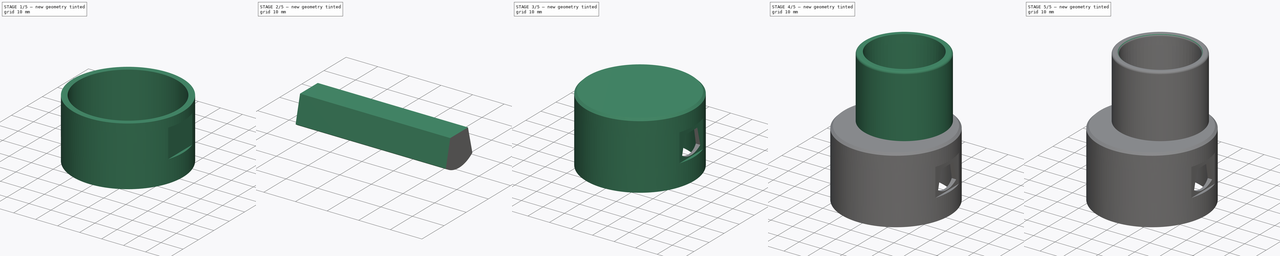
[diagram: build sequence overview — one tinted view per stage of 5, left to right]
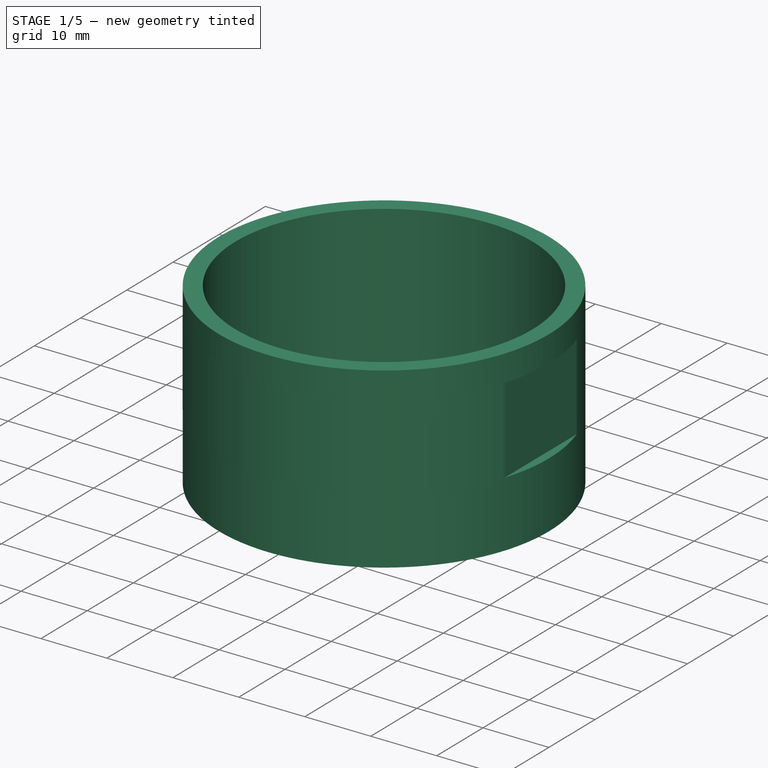
[diagram: stage 1 of 5 — iso view after this stage's code; geometry added in this stage tinted green]
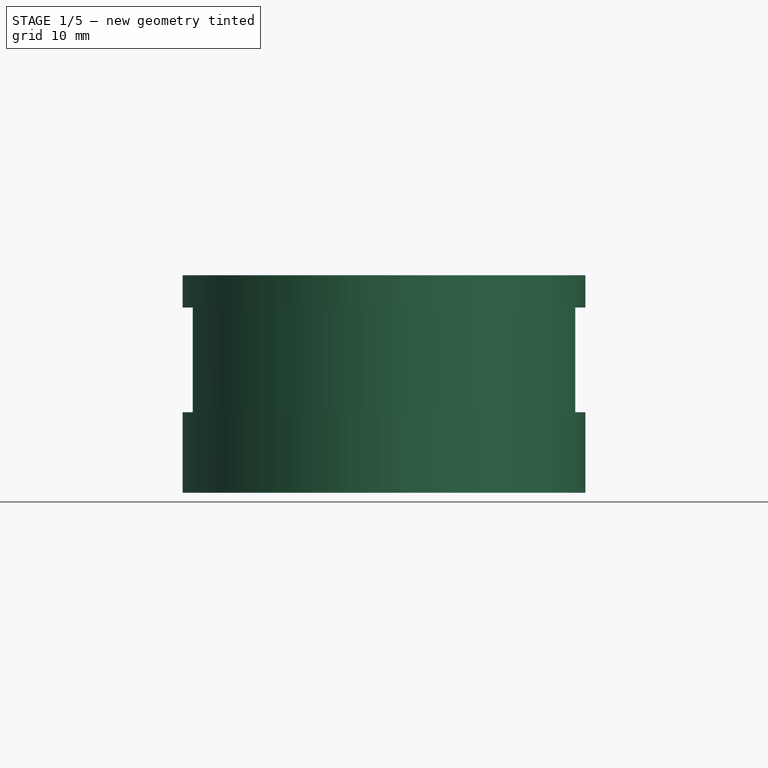
[diagram: stage 1 of 5 — front view after this stage's code; geometry added in this stage tinted green]
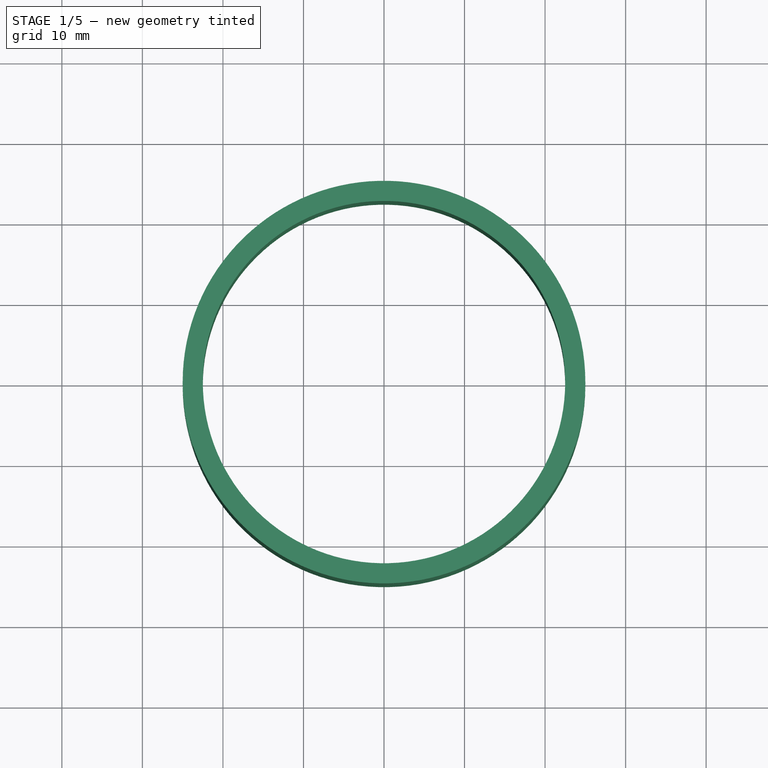
[diagram: stage 1 of 5 — top view after this stage's code; geometry added in this stage tinted green]
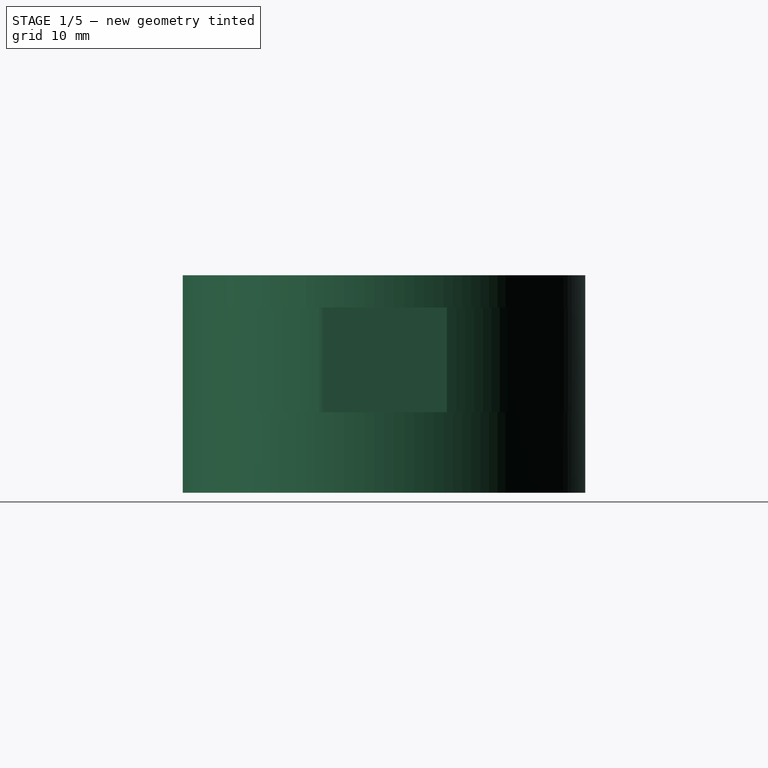
[diagram: stage 1 of 5 — right view after this stage's code; geometry added in this stage tinted green]
FCSTD DOCUMENT  (FreeCAD 0.20R29177 (Git))
Label: VacuumAdapter_Gas35_Pst900Pel
License: All rights reserved
LicenseURL: http://en.wikipedia.org/wiki/All_rights_reserved
objects: Sketcher::SketchObject×10, Part::Face×10, Part::Extrusion×7, Part::Fillet×6, Part::Fuse×5, Part::Cut×3, Part::Offset×2, Part::Loft×2, Part::Chamfer×1
note: 46 computed .brp shape members not serialized (recipe doc carries the construction recipe); baked Part::Feature solids carry a one-line shape summary decoded from their .brp

FEATURE [Sketcher::SketchObject] Sketch
  FullyConstrained = false
  sketch-geometry (10):
    g0: Circle CenterX=0 CenterY=0 CenterZ=0 NormalX=0 NormalY=0 NormalZ=1 AngleXU=0 Radius=22.5
    g1: Circle CenterX=0 CenterY=0 CenterZ=0 NormalX=0 NormalY=0 NormalZ=1 AngleXU=0 Radius=25
    g2: LineSegment StartX=-23.75 StartY=7.80625 StartZ=0 EndX=23.75 EndY=7.80625 EndZ=0
    g3: LineSegment StartX=23.75 StartY=7.80625 StartZ=0 EndX=23.75 EndY=-7.80625 EndZ=0
    g4: LineSegment StartX=23.75 StartY=-7.80625 StartZ=0 EndX=-23.75 EndY=-7.80625 EndZ=0
    g5: LineSegment StartX=-23.75 StartY=-7.80625 StartZ=0 EndX=-23.75 EndY=7.80625 EndZ=0
    g6: ArcOfCircle CenterX=0 CenterY=0 CenterZ=0 NormalX=0 NormalY=0 NormalZ=1 AngleXU=0 Radius=25 StartAngle=0.317561 EndAngle=2.82403
    g7: LineSegment StartX=-23.75 StartY=7.80625 StartZ=0 EndX=-23.75 EndY=-7.80625 EndZ=0
    g8: LineSegment StartX=23.75 StartY=7.80625 StartZ=0 EndX=23.75 EndY=-7.80625 EndZ=0
    g9: ArcOfCircle CenterX=0 CenterY=0 CenterZ=0 NormalX=0 NormalY=0 NormalZ=1 AngleXU=0 Radius=25 StartAngle=3.45915 EndAngle=5.96562
  constraints (23):
    c: Coincident(g0,g-1)
    c: Diameter(g0) = 45
    c: Coincident(g1,g0)
    c: Diameter(g1) = 50
    c: Coincident(g2,g3)
    c: Coincident(g3,g4)
    c: Coincident(g4,g5)
    c: Coincident(g5,g2)
    c: Horizontal(g2)
    c: Horizontal(g4)
    c: Vertical(g3)
    c: PointOnObject(g2,g1)
    c: PointOnObject(g3,g1)
    c: Coincident(g6,g0)
    c: Coincident(g6,g2)
    c: Coincident(g6,g2)
    c: Coincident(g7,g6)
    c: Coincident(g7,g4)
    c: Coincident(g8,g6)
    c: Coincident(g8,g3)
    c: Coincident(g9,g0)
    c: Coincident(g9,g8)
    c: Coincident(g9,g7)
FEATURE [Sketcher::SketchObject] Sketch001
  FullyConstrained = true
  sketch-geometry (2):
    g0: Circle CenterX=0 CenterY=0 CenterZ=0 NormalX=0 NormalY=0 NormalZ=1 AngleXU=0 Radius=22.5
    g1: Circle CenterX=0 CenterY=0 CenterZ=0 NormalX=0 NormalY=0 NormalZ=1 AngleXU=0 Radius=25
  constraints (4):
    c: Coincident(g0,g-1)
    c: Diameter(g0) = 45
    c: Coincident(g1,g0)
    c: Diameter(g1) = 50
FEATURE [Part::Face] Face
  FaceMakerClass = Part::FaceMakerBullseye
  Sources = -> [Sketch001]
FEATURE [Part::Extrusion] Extrude
  Base = -> Face
  Dir = (0,0,1)
  DirMode = 2
  FaceMakerClass = Part::FaceMakerBullseye
  LengthFwd = 10
  LengthRev = 0
  Solid = false
  Symmetric = false
FEATURE [Part::Face] Face001
  FaceMakerClass = Part::FaceMakerBullseye
  Sources = -> [Sketch]
FEATURE [Part::Offset] Offset
  Fill = false
  Intersection = false
  Join = 0
  Mode = 0
  SelfIntersection = false
  Source = -> Face001
  Value = 10
FEATURE [Part::Extrusion] Extrude001
  Base = -> Offset
  Dir = (0,0,1)
  DirMode = 2
  FaceMakerClass = Part::FaceMakerBullseye
  LengthFwd = 13
  LengthRev = 0
  Solid = false
  Symmetric = false
FEATURE [Part::Offset] Offset001
  Fill = false
  Intersection = false
  Join = 0
  Mode = 0
  SelfIntersection = false
  Source = -> Face
  Value = 23
FEATURE [Part::Extrusion] Extrude002
  Base = -> Offset001
  Dir = (0,0,1)
  DirMode = 2
  FaceMakerClass = Part::FaceMakerBullseye
  LengthFwd = 4
  LengthRev = 0
  Solid = false
  Symmetric = false
FEATURE [Part::Fillet] Fillet
  Base = -> Extrude001
  Edges = 1 edges r=2: [Edge8]
FEATURE [Part::Fuse] Fusion
  Base = -> Extrude
  Tool = -> Extrude002
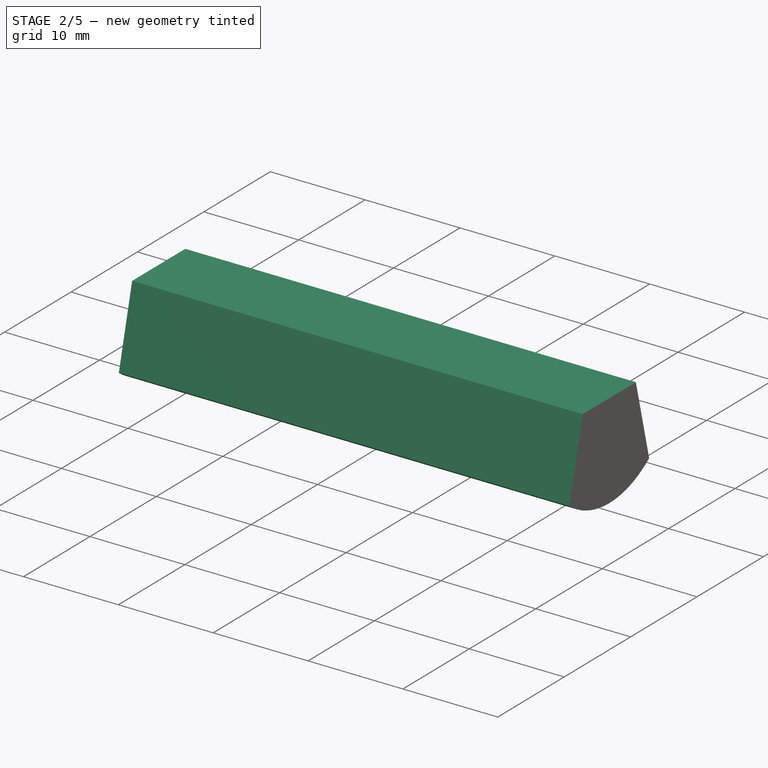
[diagram: stage 2 of 5 — iso view after this stage's code; geometry added in this stage tinted green]
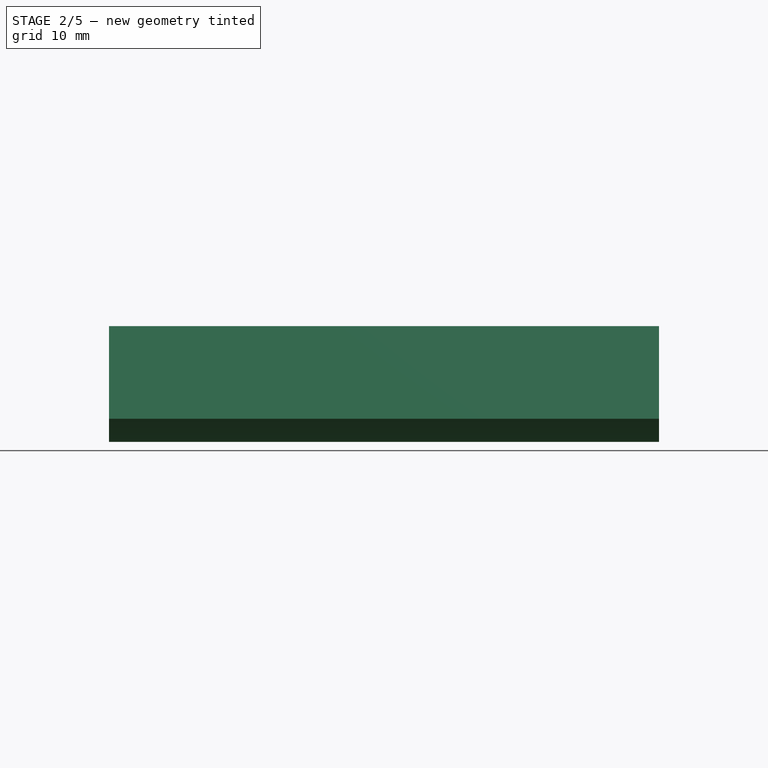
[diagram: stage 2 of 5 — front view after this stage's code; geometry added in this stage tinted green]
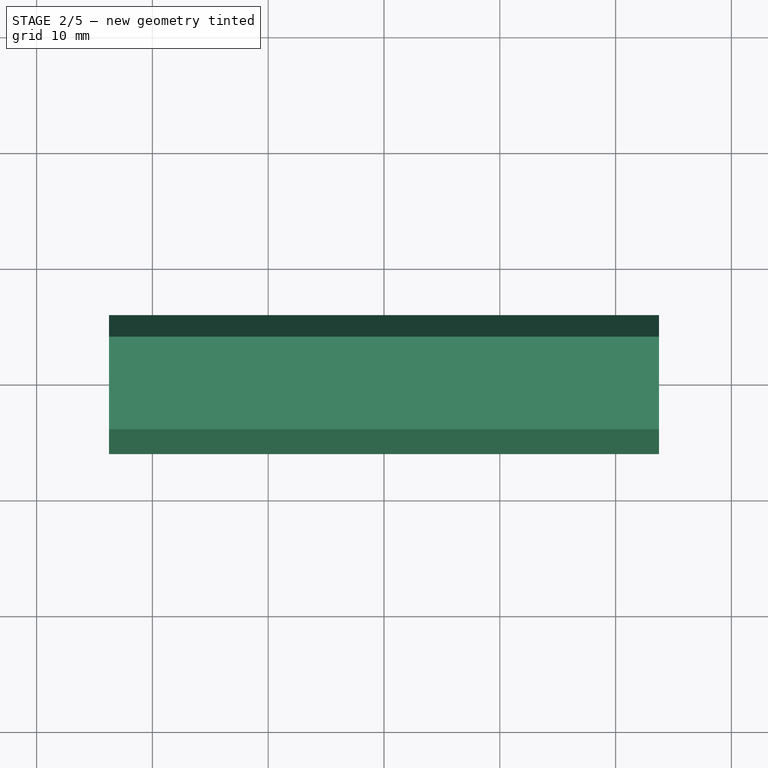
[diagram: stage 2 of 5 — top view after this stage's code; geometry added in this stage tinted green]
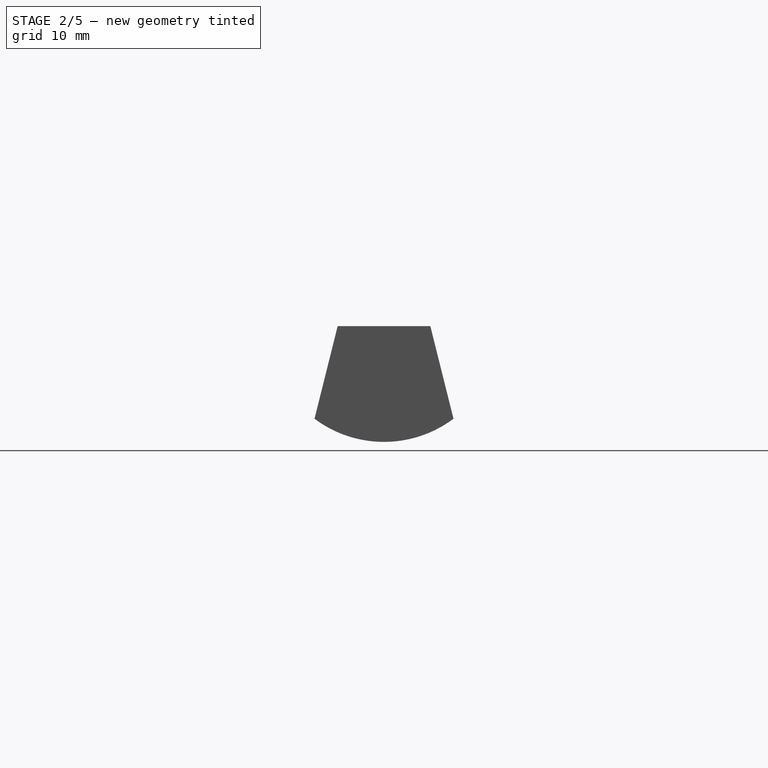
[diagram: stage 2 of 5 — right view after this stage's code; geometry added in this stage tinted green]
FEATURE [Part::Fillet] Fillet001
  Base = -> Fillet
  Edges = 1 edges r=2: [Edge17]
FEATURE [Part::Fillet] Fillet002
  Base = -> Fillet001
  Edges = 1 edges r=2: [Edge16]
FEATURE [Part::Fillet] Fillet003
  Base = -> Fillet002
  Edges = 1 edges r=2: [Edge17]
FEATURE [Part::Fuse] Fusion001
  Base = -> Fillet003
  Tool = -> Fusion
FEATURE [Sketcher::SketchObject] Sketch002
  FullyConstrained = true
  MapMode = 5
  Placement = pos=(23.75,0,0) rot=(0.57735,0.57735,0.57735;2.0944rad)
  Support = -> [Fusion001]
  sketch-geometry (5):
    g0: LineSegment StartX=-4 StartY=20.5 StartZ=0 EndX=4 EndY=20.5 EndZ=0
    g1: LineSegment StartX=-6 StartY=12.5 StartZ=0 EndX=6 EndY=12.5 EndZ=0
    g2: LineSegment StartX=4 StartY=20.5 StartZ=0 EndX=6 EndY=12.5 EndZ=0
    g3: LineSegment StartX=-4 StartY=20.5 StartZ=0 EndX=-6 EndY=12.5 EndZ=0
    g4: ArcOfCircle CenterX=-2e-16 CenterY=20.5 CenterZ=0 NormalX=0 NormalY=0 NormalZ=1 AngleXU=0 Radius=10 StartAngle=4.06889 EndAngle=5.35589
  constraints (15):
    c: Horizontal(g0)
    c: Horizontal(g1)
    c: DistanceY(g-1,g1) = 12.5
    c: DistanceY(g1,g0) = 8
    c: DistanceX(g-1,g0) = 4
    c: DistanceX(g-1,g1) = 6
    c: DistanceX(g1,g1) = 12
    c: DistanceX(g0,g0) = 8
    c: Coincident(g2,g0)
    c: Coincident(g2,g1)
    c: Coincident(g3,g0)
    c: Coincident(g3,g1)
    c: PointOnObject(g4,g0)
    c: Coincident(g4,g2)
    c: Coincident(g4,g3)
FEATURE [Part::Face] Face002
  FaceMakerClass = Part::FaceMakerBullseye
  Sources = -> [Sketch002]
FEATURE [Part::Extrusion] Extrude003
  Base = -> Face002
  Dir = (1,0,0)
  DirMode = 2
  FaceMakerClass = Part::FaceMakerBullseye
  LengthFwd = -47.5
  LengthRev = 0
  Solid = false
  Symmetric = false
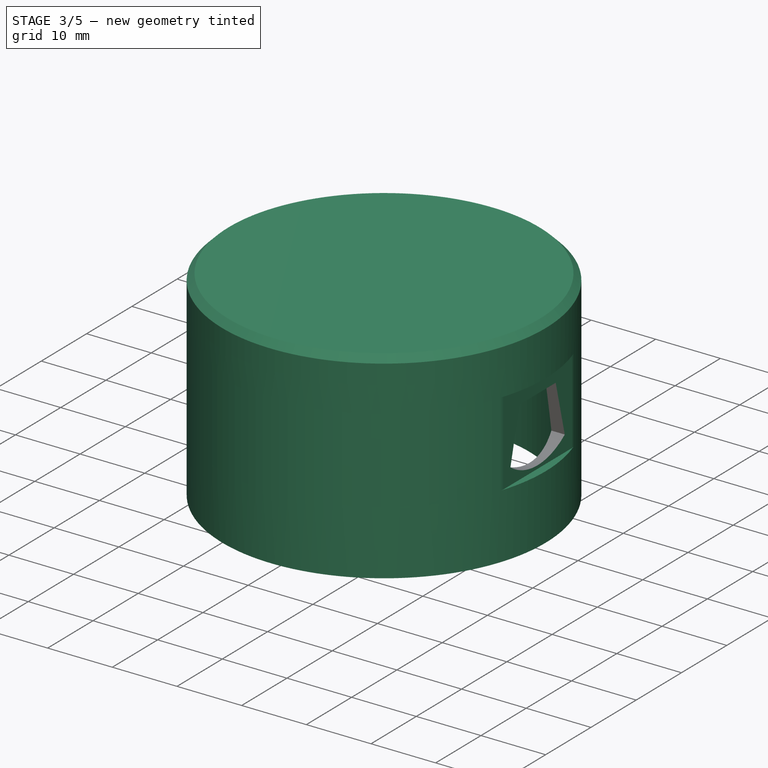
[diagram: stage 3 of 5 — iso view after this stage's code; geometry added in this stage tinted green]
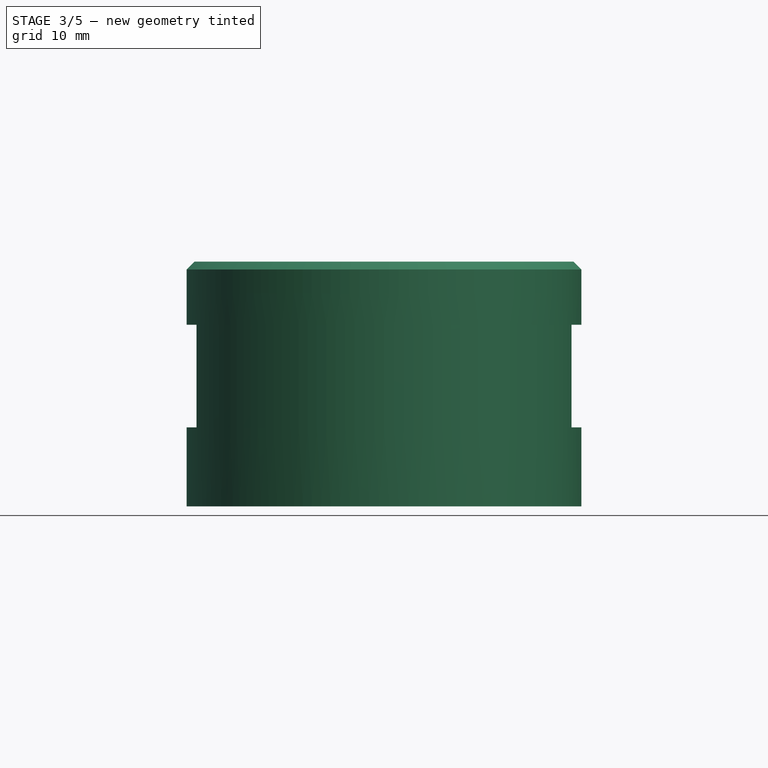
[diagram: stage 3 of 5 — front view after this stage's code; geometry added in this stage tinted green]
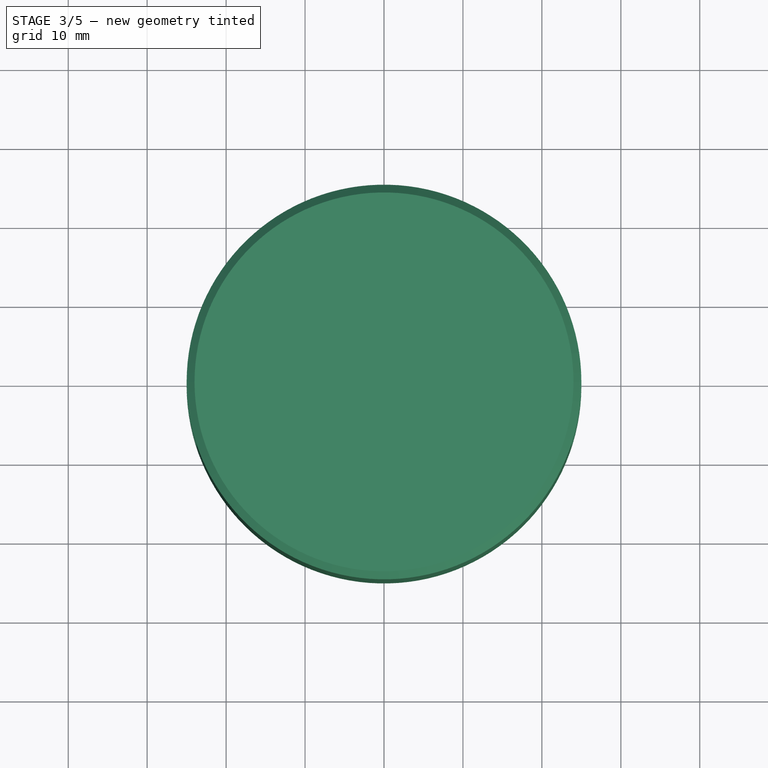
[diagram: stage 3 of 5 — top view after this stage's code; geometry added in this stage tinted green]
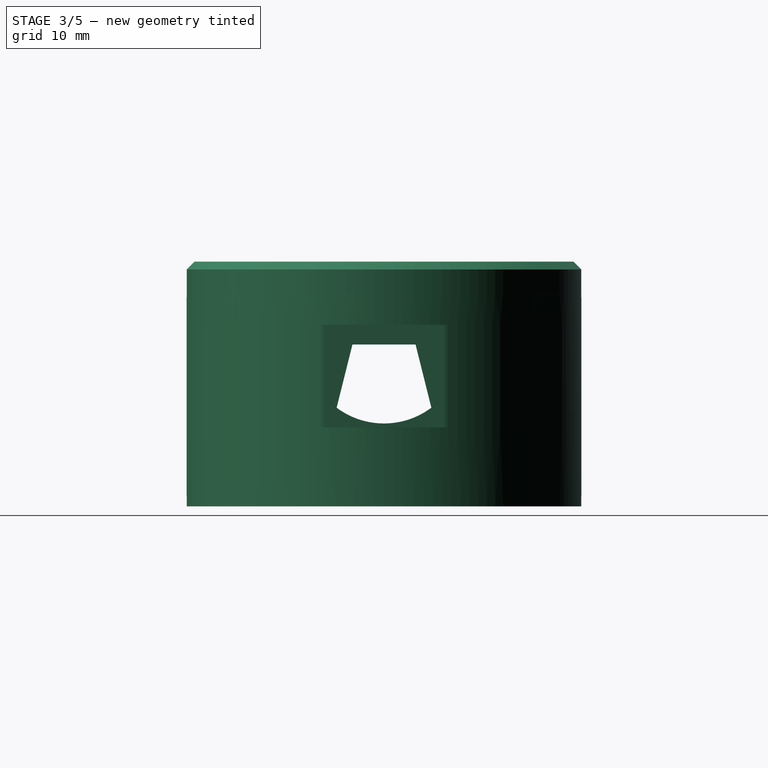
[diagram: stage 3 of 5 — right view after this stage's code; geometry added in this stage tinted green]
FEATURE [Part::Cut] Cut
  Base = -> Fusion001
  Tool = -> Extrude003
FEATURE [Sketcher::SketchObject] Sketch003
  FullyConstrained = true
  MapMode = 5
  Placement = pos=(0,0,27) rot=(0,0,1;0rad)
  Support = -> [Cut]
  sketch-geometry (1):
    g0: Circle CenterX=0 CenterY=0 CenterZ=0 NormalX=0 NormalY=0 NormalZ=1 AngleXU=0 Radius=25
  constraints (2):
    c: Coincident(g0,g-1)
    c: Diameter(g0) = 50
FEATURE [Part::Face] Face003
  FaceMakerClass = Part::FaceMakerBullseye
  Sources = -> [Sketch003]
FEATURE [Part::Extrusion] Extrude004
  Base = -> Sketch003
  Dir = (0,0,1)
  DirMode = 2
  FaceMakerClass = Part::FaceMakerBullseye
  LengthFwd = 4
  LengthRev = 0
  Solid = true
  Symmetric = false
FEATURE [Part::Chamfer] Chamfer
  Base = -> Extrude004
  Edges = 1 edges r=1: [Edge3]
FEATURE [Part::Fuse] Fusion002
  Base = -> Cut
  Tool = -> Chamfer
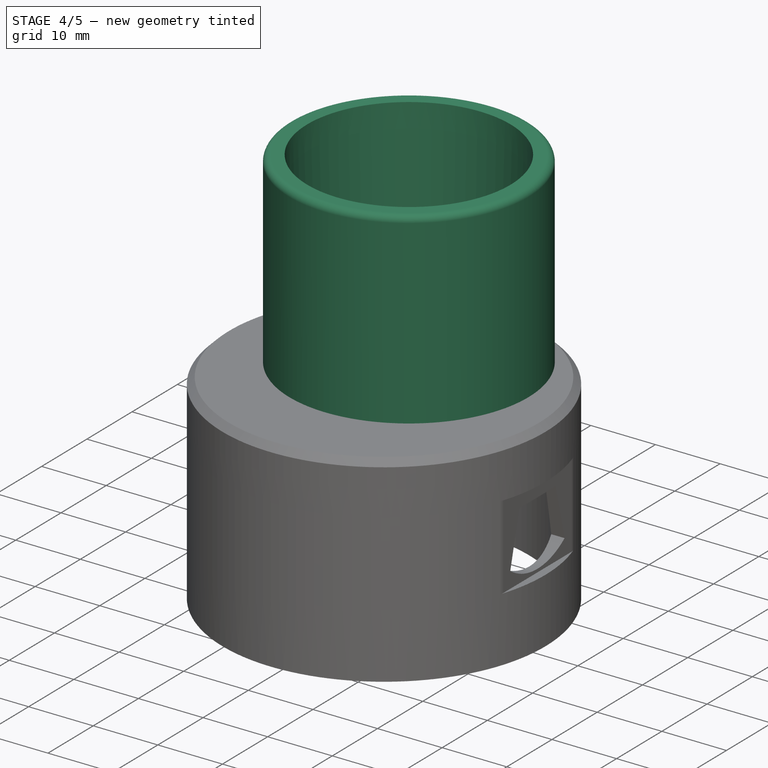
[diagram: stage 4 of 5 — iso view after this stage's code; geometry added in this stage tinted green]
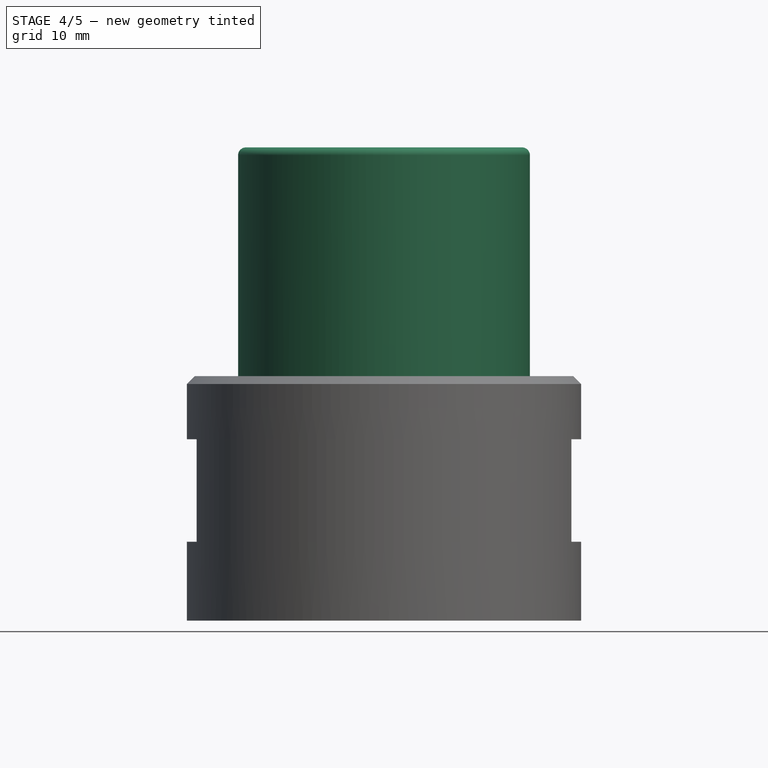
[diagram: stage 4 of 5 — front view after this stage's code; geometry added in this stage tinted green]
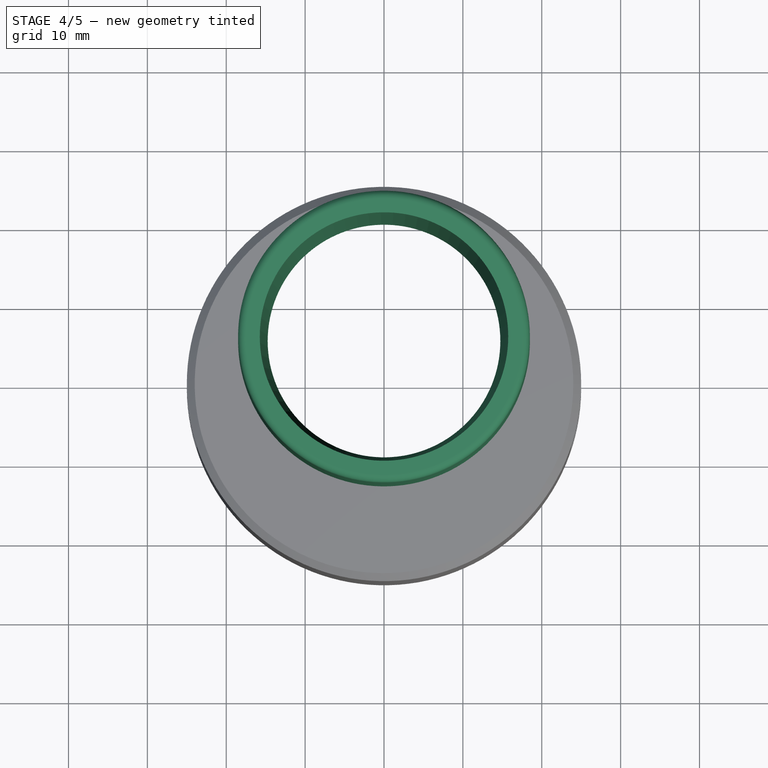
[diagram: stage 4 of 5 — top view after this stage's code; geometry added in this stage tinted green]
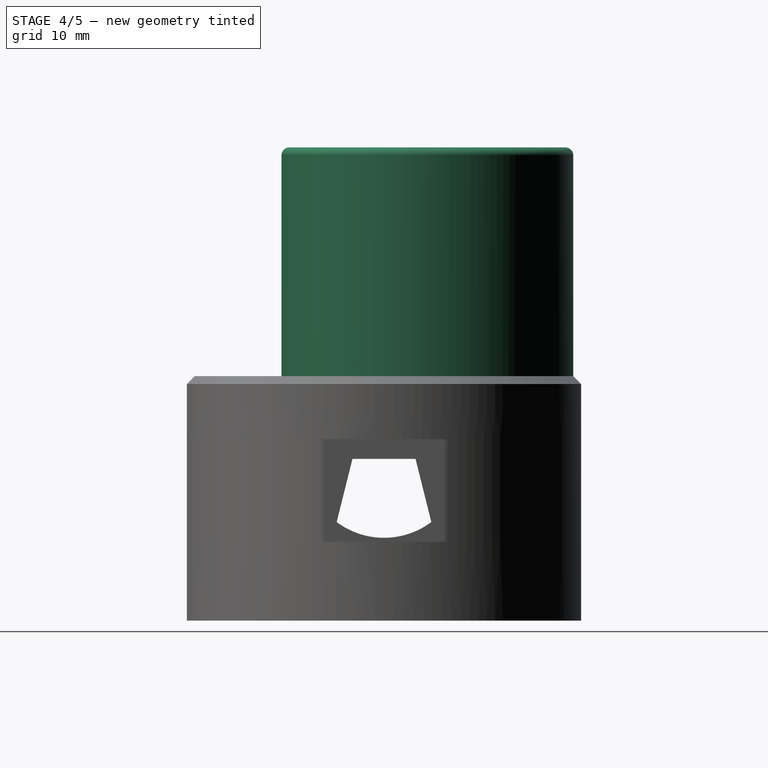
[diagram: stage 4 of 5 — right view after this stage's code; geometry added in this stage tinted green]
FEATURE [Sketcher::SketchObject] Sketch004
  ExternalGeometry = -> [Chamfer]
  FullyConstrained = true
  MapMode = 5
  Placement = pos=(0,0,31) rot=(0,0,1;0rad)
  Support = -> [Chamfer]
  sketch-geometry (1):
    g0: Circle CenterX=0 CenterY=5.5 CenterZ=0 NormalX=0 NormalY=0 NormalZ=1 AngleXU=0 Radius=18.5
  constraints (3):
    c: PointOnObject(g0,g-2)
    c: Diameter(g0) = 37
    c: Tangent(g0,g-3)
FEATURE [Part::Face] Face004
  FaceMakerClass = Part::FaceMakerBullseye
  Sources = -> [Sketch004]
FEATURE [Part::Extrusion] Extrude005
  Base = -> Sketch004
  Dir = (0,0,1)
  DirMode = 2
  FaceMakerClass = Part::FaceMakerBullseye
  LengthFwd = 29
  LengthRev = 0
  Solid = true
  Symmetric = false
FEATURE [Sketcher::SketchObject] Sketch005
  ExternalGeometry = -> [Extrude005]
  FullyConstrained = true
  MapMode = 5
  Placement = pos=(0,0,60) rot=(0,0,1;0rad)
  Support = -> [Extrude005]
  sketch-geometry (1):
    g0: Circle CenterX=0 CenterY=5.5 CenterZ=0 NormalX=0 NormalY=0 NormalZ=1 AngleXU=0 Radius=15.75
  constraints (2):
    c: Coincident(g0,g-3)
    c: Diameter(g0) = 31.5
FEATURE [Part::Face] Face005
  FaceMakerClass = Part::FaceMakerBullseye
  Sources = -> [Sketch005]
FEATURE [Sketcher::SketchObject] Sketch006
  ExternalGeometry = -> [Sketch005]
  FullyConstrained = true
  MapMode = 5
  Placement = pos=(0,0,27) rot=(0,0,1;0rad)
  Support = -> [Face003]
  sketch-geometry (1):
    g0: Circle CenterX=0 CenterY=5.5 CenterZ=0 NormalX=0 NormalY=0 NormalZ=1 AngleXU=0 Radius=14.75
  constraints (2):
    c: Coincident(g0,g-3)
    c: Diameter(g0) = 29.5
FEATURE [Part::Face] Face006
  FaceMakerClass = Part::FaceMakerBullseye
  Sources = -> [Sketch006]
FEATURE [Part::Loft] Loft
  Closed = false
  MaxDegree = 5
  Ruled = false
  Sections = -> [Face005,Face006]
  Solid = true
FEATURE [Part::Fuse] Fusion003
  Base = -> Extrude005
  Tool = -> Fusion002
FEATURE [Part::Cut] Cut001
  Base = -> Fusion003
  Tool = -> Loft
FEATURE [Part::Fillet] Fillet004
  Base = -> Cut001
  Edges = 1 edges r=1: [Edge4]
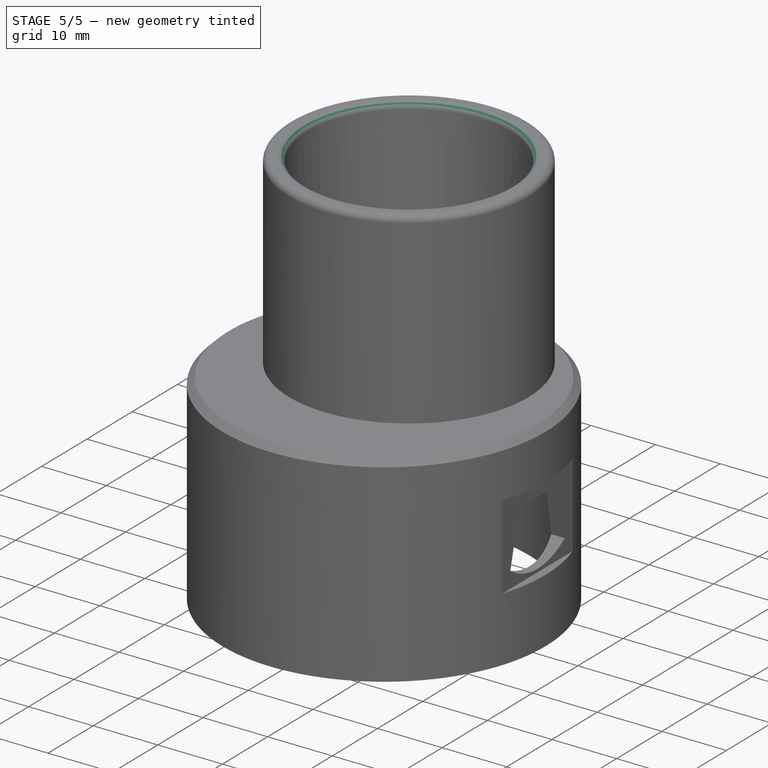
[diagram: stage 5 of 5 — iso view after this stage's code; geometry added in this stage tinted green]
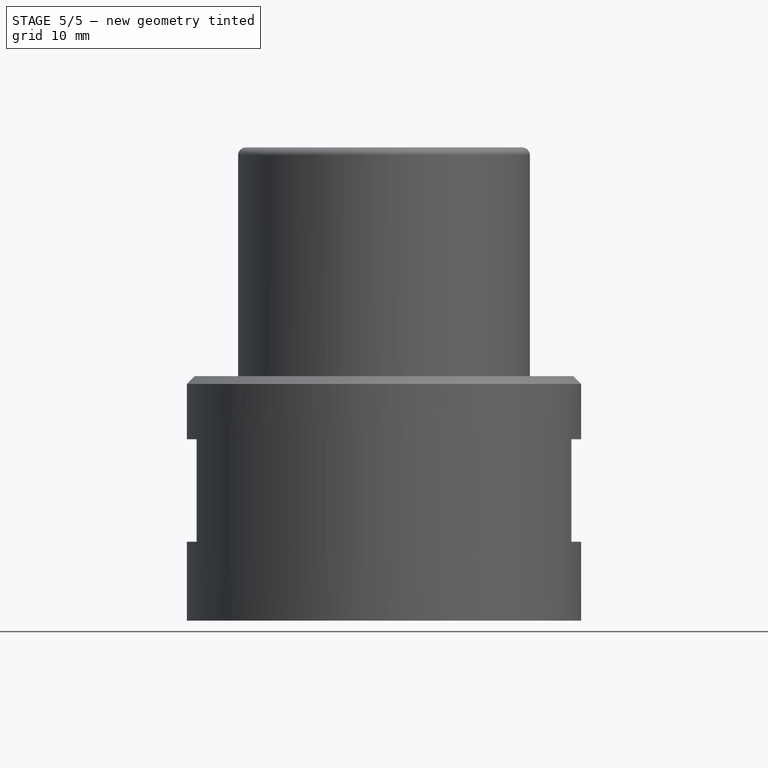
[diagram: stage 5 of 5 — front view after this stage's code; geometry added in this stage tinted green]
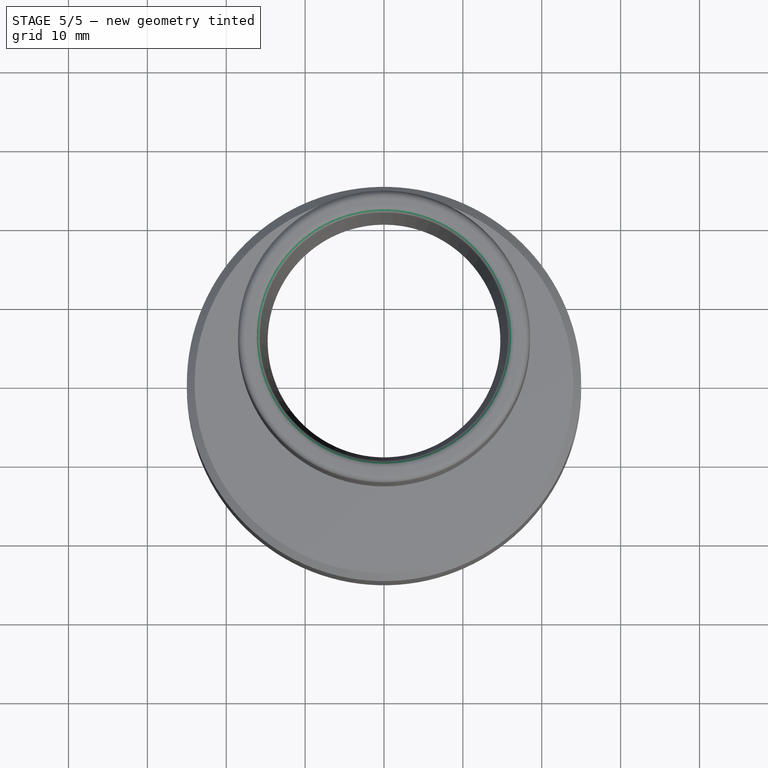
[diagram: stage 5 of 5 — top view after this stage's code; geometry added in this stage tinted green]
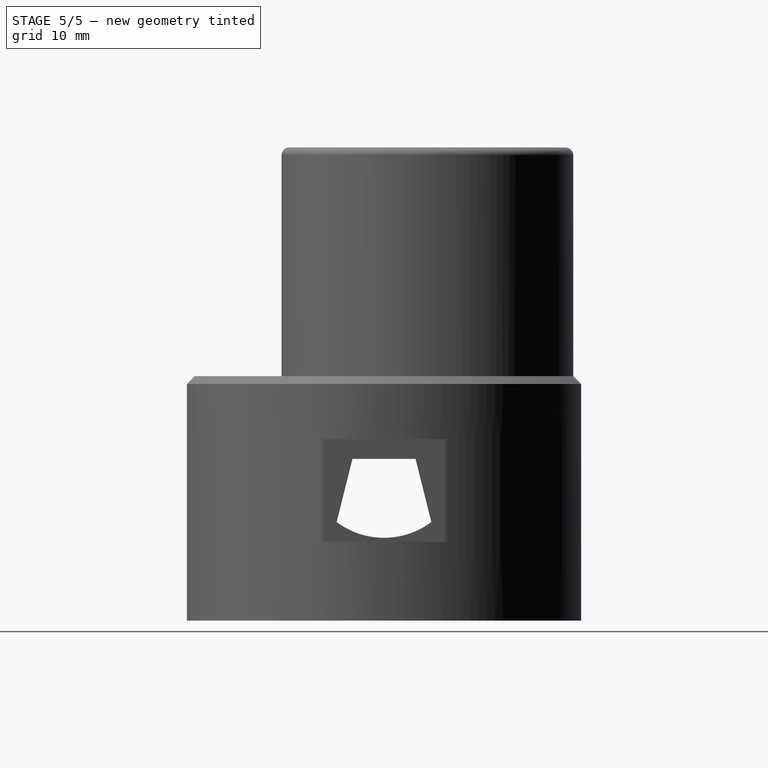
[diagram: stage 5 of 5 — right view after this stage's code; geometry added in this stage tinted green]
FEATURE [Part::Fillet] Fillet005
  Base = -> Fillet004
  Edges = 1 edges r=1: [Edge9]
FEATURE [Sketcher::SketchObject] Sketch007
  ExternalGeometry = -> [Fillet005]
  FullyConstrained = true
  MapMode = 5
  Placement = pos=(0,0,27) rot=(1,0,0;3.14159rad)
  Support = -> [Fillet005]
  sketch-geometry (1):
    g0: Circle CenterX=0 CenterY=-5.5 CenterZ=0 NormalX=0 NormalY=0 NormalZ=1 AngleXU=0 Radius=16
  constraints (2):
    c: Coincident(g0,g-3)
    c: Diameter(g0) = 32
FEATURE [Part::Face] Face007
  FaceMakerClass = Part::FaceMakerBullseye
  Sources = -> [Sketch007]
FEATURE [Sketcher::SketchObject] Sketch008
  FullyConstrained = true
  MapMode = 5
  Placement = pos=(0,0,27) rot=(1,0,0;3.14159rad)
  Support = -> [Fillet005]
  sketch-geometry (1):
    g0: Circle CenterX=0 CenterY=0 CenterZ=0 NormalX=0 NormalY=0 NormalZ=1 AngleXU=0 Radius=22.5
  constraints (2):
    c: Coincident(g0,g-1)
    c: Diameter(g0) = 45
FEATURE [Part::Face] Face008
  FaceMakerClass = Part::FaceMakerBullseye
  Sources = -> [Sketch008]
FEATURE [Part::Extrusion] Extrude006
  Base = -> Sketch008
  Dir = (0,0,-1)
  DirMode = 2
  FaceMakerClass = Part::FaceMakerBullseye
  LengthFwd = 1
  LengthRev = 0
  Solid = true
  Symmetric = false
FEATURE [Sketcher::SketchObject] Sketch009
  FullyConstrained = true
  MapMode = 5
  Placement = pos=(0,0,26) rot=(1,0,0;3.14159rad)
  Support = -> [Extrude006]
  sketch-geometry (1):
    g0: Circle CenterX=0 CenterY=0 CenterZ=0 NormalX=0 NormalY=0 NormalZ=1 AngleXU=0 Radius=21
  constraints (2):
    c: Coincident(g0,g-1)
    c: Diameter(g0) = 42
FEATURE [Part::Face] Face009
  FaceMakerClass = Part::FaceMakerBullseye
  Sources = -> [Sketch009]
FEATURE [Part::Loft] Loft001
  Closed = false
  MaxDegree = 5
  Ruled = false
  Sections = -> [Face007,Face009]
  Solid = true
FEATURE [Part::Cut] Cut002
  Base = -> Extrude006
  Tool = -> Loft001
FEATURE [Part::Fuse] Fusion004
  Base = -> Fillet005
  Tool = -> Cut002
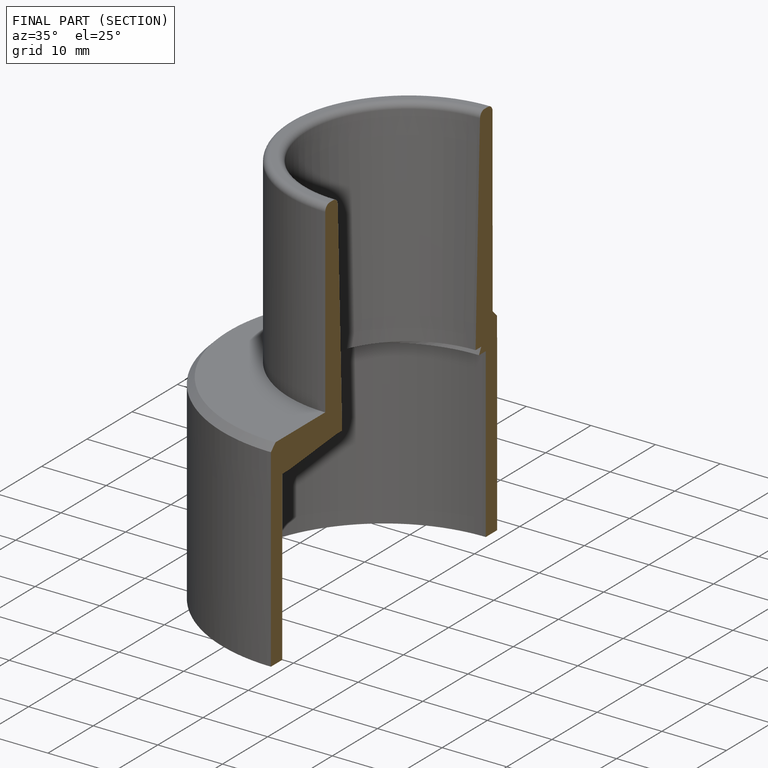
[diagram: finished part — half-section view (interior)]
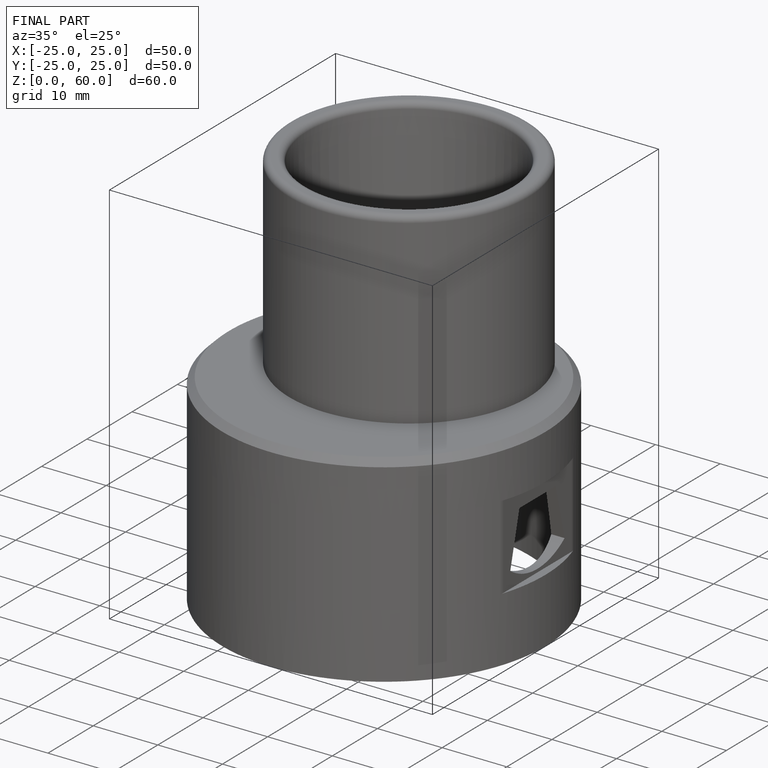
[diagram: finished part — iso view with bounding-box wireframe]
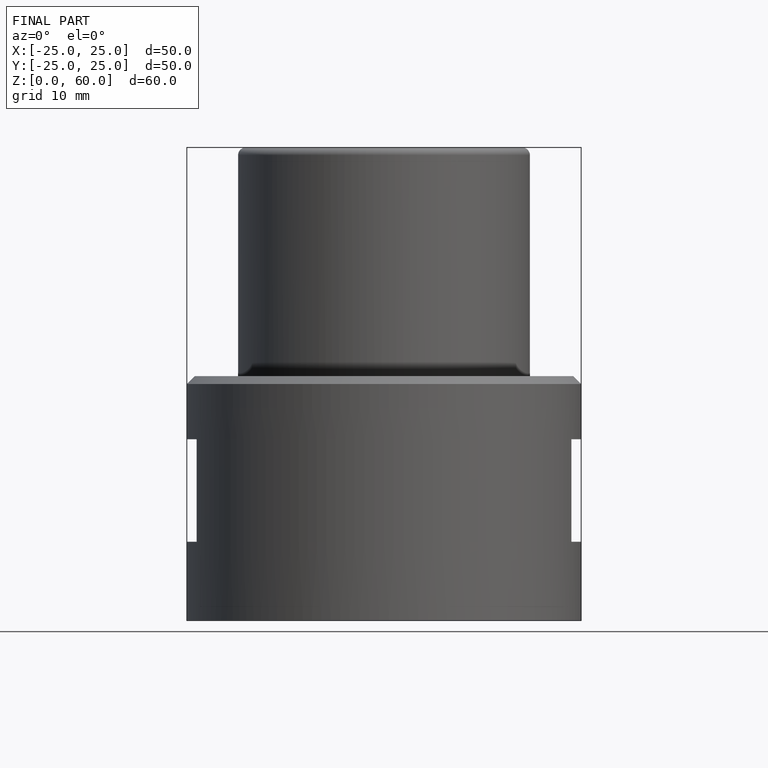
[diagram: finished part — front view with bounding-box wireframe]
